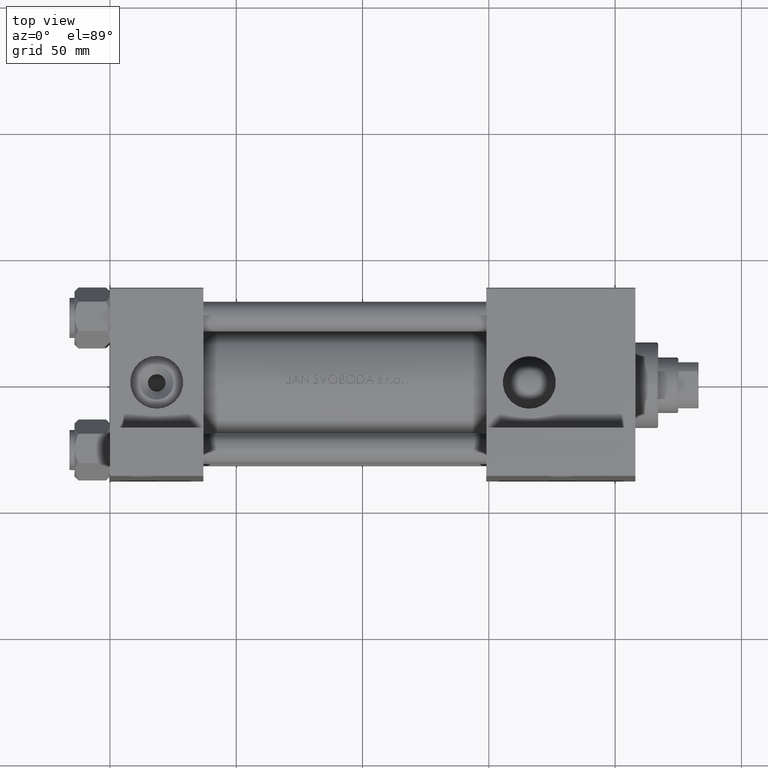
[diagram: clean part render]
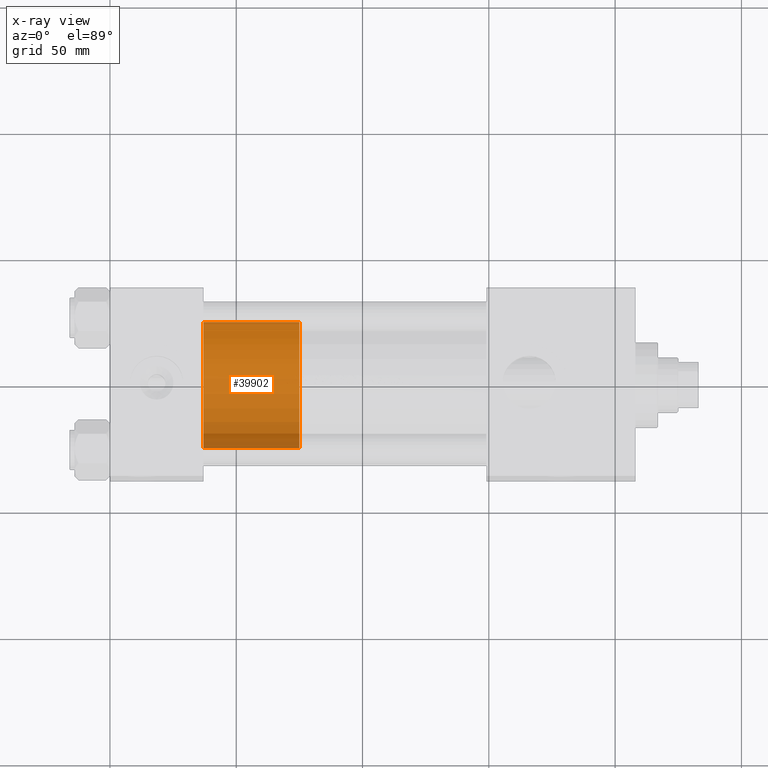
[diagram: x-ray — body ghosted, one internal face saturated and labeled with its STEP entity id]
A machine part, top view, then the same camera in x-ray: the body is ghosted and one INTERNAL B-rep face — a face not visible from any outside direction — is saturated and labeled: STEP entity #39902.
In plain terms, the highlighted cylindrical surface (partial cylindrical patch) has radius 25 mm, axis along (-1, 0, 0).
Its self-contained STEP definition (entity closure, byte-faithful):
#1181 = VERTEX_POINT ( 'NONE', #30882 ) ;
#1939 = EDGE_LOOP ( 'NONE', ( #15891, #23292, #44177, #12579 ) ) ;
#5350 = CIRCLE ( 'NONE', #11723, 25.00000000000000000 ) ;
#5596 = CARTESIAN_POINT ( 'NONE',  ( 0.000000000000000000, 0.000000000000000000, 0.000000000000000000 ) ) ;
#6109 = CARTESIAN_POINT ( 'NONE',  ( -25.00000000000000000, 0.000000000000000000, 38.00000000000000000 ) ) ;
#6334 = DIRECTION ( 'NONE',  ( 1.000000000000000000, 0.000000000000000000, 0.000000000000000000 ) ) ;
#10098 = DIRECTION ( 'NONE',  ( -0.000000000000000000, -0.000000000000000000, -1.000000000000000000 ) ) ;
#11170 = VECTOR ( 'NONE', #31194, 1000.000000000000000 ) ;
#11723 = AXIS2_PLACEMENT_3D ( 'NONE', #5596, #24783, #6334 ) ;
#12018 = CARTESIAN_POINT ( 'NONE',  ( 25.00000000000000000, 3.061616997868383043E-15, 38.00000000000000000 ) ) ;
#12579 = ORIENTED_EDGE ( 'NONE', *, *, #17917, .F. ) ;
#14743 = CARTESIAN_POINT ( 'NONE',  ( 25.00000000000000000, 3.061616997868383043E-15, 0.000000000000000000 ) ) ;
#15785 = EDGE_CURVE ( 'NONE', #1181, #23082, #34673, .T. ) ;
#15891 = ORIENTED_EDGE ( 'NONE', *, *, #41976, .F. ) ;
#15989 = CIRCLE ( 'NONE', #35867, 25.00000000000000000 ) ;
#17917 = EDGE_CURVE ( 'NONE', #43563, #20138, #18047, .T. ) ;
#18047 = LINE ( 'NONE', #6109, #31941 ) ;
#20138 = VERTEX_POINT ( 'NONE', #41947 ) ;
#22399 = DIRECTION ( 'NONE',  ( -0.000000000000000000, -0.000000000000000000, -1.000000000000000000 ) ) ;
#23082 = VERTEX_POINT ( 'NONE', #14743 ) ;
#23139 = DIRECTION ( 'NONE',  ( -1.000000000000000000, 0.000000000000000000, 0.000000000000000000 ) ) ;
#23292 = ORIENTED_EDGE ( 'NONE', *, *, #15785, .T. ) ;
#24783 = DIRECTION ( 'NONE',  ( 0.000000000000000000, 0.000000000000000000, 1.000000000000000000 ) ) ;
#25883 = CYLINDRICAL_SURFACE ( 'NONE', #26261, 25.00000000000000000 ) ;
#26261 = AXIS2_PLACEMENT_3D ( 'NONE', #48800, #22399, #23139 ) ;
#29305 = DIRECTION ( 'NONE',  ( 0.000000000000000000, 0.000000000000000000, 1.000000000000000000 ) ) ;
#29495 = EDGE_CURVE ( 'NONE', #23082, #20138, #5350, .T. ) ;
#30882 = CARTESIAN_POINT ( 'NONE',  ( 25.00000000000000000, 3.061616997868383043E-15, 38.00000000000000000 ) ) ;
#31194 = DIRECTION ( 'NONE',  ( -0.000000000000000000, -0.000000000000000000, -1.000000000000000000 ) ) ;
#31941 = VECTOR ( 'NONE', #10098, 1000.000000000000000 ) ;
#33527 = DIRECTION ( 'NONE',  ( 1.000000000000000000, 0.000000000000000000, 0.000000000000000000 ) ) ;
#34673 = LINE ( 'NONE', #12018, #11170 ) ;
#35867 = AXIS2_PLACEMENT_3D ( 'NONE', #48244, #29305, #33527 ) ;
#39182 = CARTESIAN_POINT ( 'NONE',  ( -25.00000000000000000, 0.000000000000000000, 38.00000000000000000 ) ) ;
#39902 = ADVANCED_FACE ( 'NONE', ( #44808 ), #25883, .T. ) ;
#41947 = CARTESIAN_POINT ( 'NONE',  ( -25.00000000000000000, 0.000000000000000000, 0.000000000000000000 ) ) ;
#41976 = EDGE_CURVE ( 'NONE', #1181, #43563, #15989, .T. ) ;
#43563 = VERTEX_POINT ( 'NONE', #39182 ) ;
#44177 = ORIENTED_EDGE ( 'NONE', *, *, #29495, .T. ) ;
#44808 = FACE_OUTER_BOUND ( 'NONE', #1939, .T. ) ;
#48244 = CARTESIAN_POINT ( 'NONE',  ( 0.000000000000000000, 0.000000000000000000, 38.00000000000000000 ) ) ;
#48800 = CARTESIAN_POINT ( 'NONE',  ( 0.000000000000000000, 0.000000000000000000, 38.00000000000000000 ) ) ;